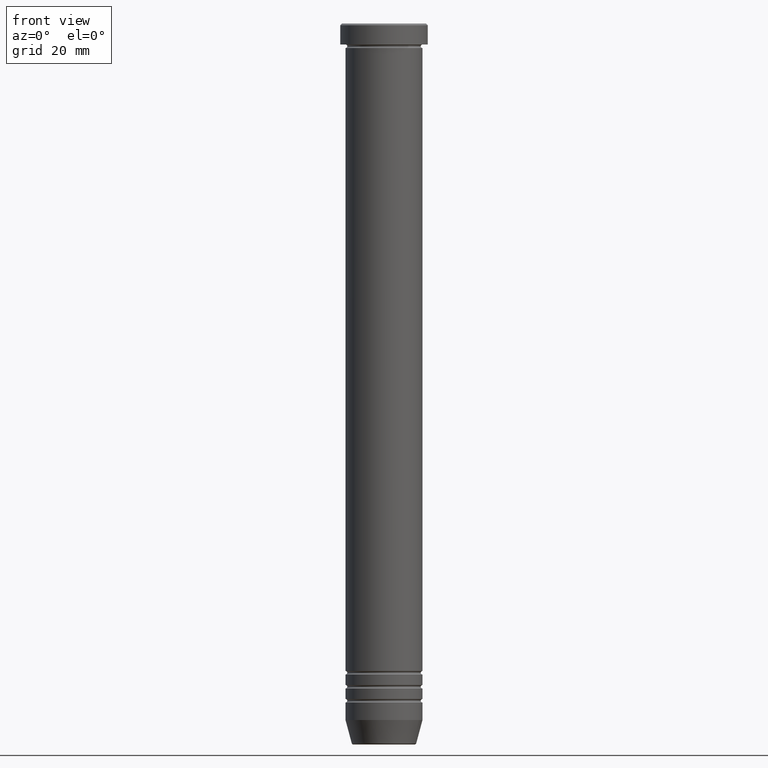
[diagram: clean part render]
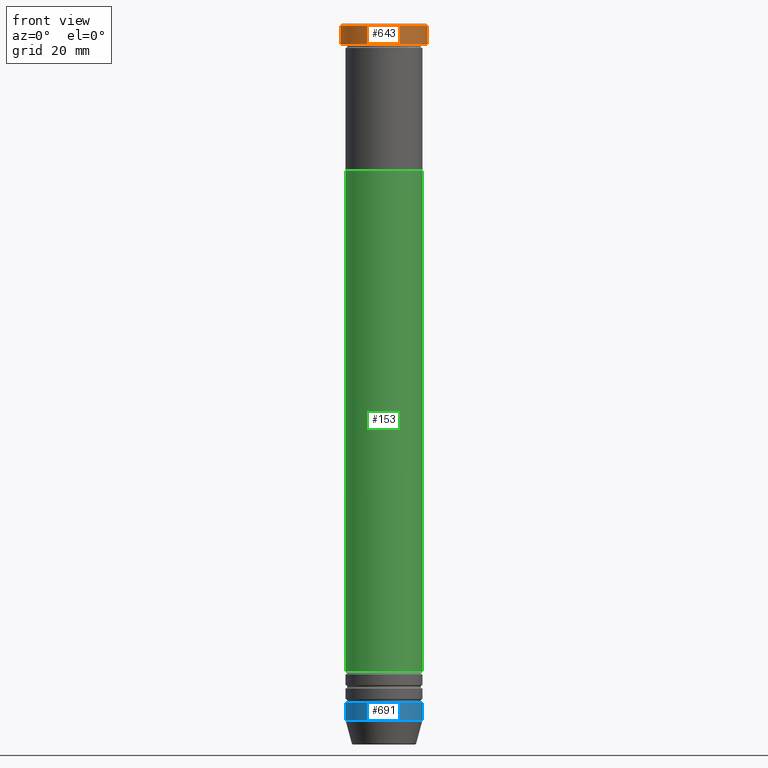
[diagram: same view with three faces highlighted in distinct colors, each labeled with its STEP entity id]
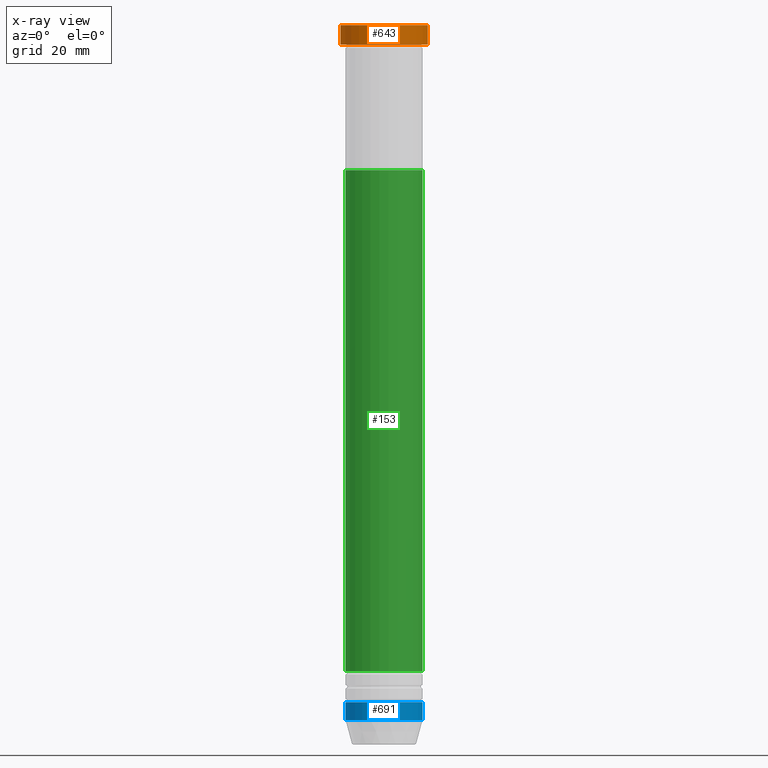
[diagram: x-ray of the same camera — body ghosted, the three highlighted faces saturated]
A machine part, front view with three faces highlighted in distinct colors.
The next image is the same camera in x-ray (body ghosted, the three faces saturated) — at least one of them is partly hidden behind the body in this view.
Their STEP definitions:

[orange] entity #643 — the highlighted cylindrical surface (partial cylindrical patch) has radius 12.5 mm, axis along (-0, -0, 1).
#18 = CARTESIAN_POINT ( 'NONE',  ( 0.000000000000000000, 0.000000000000000000, -0.5000000000000056621 ) ) ;
#50 = CARTESIAN_POINT ( 'NONE',  ( 12.50000000000000000, 0.000000000000000000, -0.5000000000000056621 ) ) ;
#63 = VERTEX_POINT ( 'NONE', #84 ) ;
#83 = CARTESIAN_POINT ( 'NONE',  ( 12.50000000000000000, 0.000000000000000000, 0.000000000000000000 ) ) ;
#84 = CARTESIAN_POINT ( 'NONE',  ( 12.50000000000000000, 0.000000000000000000, -6.000000000000000000 ) ) ;
#91 = DIRECTION ( 'NONE',  ( -0.000000000000000000, -0.000000000000000000, 1.000000000000000000 ) ) ;
#92 = CIRCLE ( 'NONE', #222, 12.50000000000000000 ) ;
#115 = ORIENTED_EDGE ( 'NONE', *, *, #1132, .T. ) ;
#133 = CARTESIAN_POINT ( 'NONE',  ( -12.50000000000000000, 1.530808498934191521E-15, -6.000000000000000000 ) ) ;
#200 = CYLINDRICAL_SURFACE ( 'NONE', #613, 12.50000000000000000 ) ;
#201 = VERTEX_POINT ( 'NONE', #50 ) ;
#222 = AXIS2_PLACEMENT_3D ( 'NONE', #18, #1054, #594 ) ;
#270 = DIRECTION ( 'NONE',  ( -0.000000000000000000, -0.000000000000000000, 1.000000000000000000 ) ) ;
#278 = CARTESIAN_POINT ( 'NONE',  ( 0.000000000000000000, 0.000000000000000000, -6.000000000000000000 ) ) ;
#289 = DIRECTION ( 'NONE',  ( -0.000000000000000000, -0.000000000000000000, 1.000000000000000000 ) ) ;
#293 = FACE_OUTER_BOUND ( 'NONE', #974, .T. ) ;
#360 = VERTEX_POINT ( 'NONE', #133 ) ;
#386 = EDGE_CURVE ( 'NONE', #360, #858, #1050, .T. ) ;
#399 = CIRCLE ( 'NONE', #1063, 12.50000000000000000 ) ;
#413 = ORIENTED_EDGE ( 'NONE', *, *, #651, .T. ) ;
#430 = LINE ( 'NONE', #83, #586 ) ;
#444 = EDGE_CURVE ( 'NONE', #201, #858, #92, .T. ) ;
#476 = ORIENTED_EDGE ( 'NONE', *, *, #444, .T. ) ;
#480 = CARTESIAN_POINT ( 'NONE',  ( -12.50000000000000000, 1.530808498934191521E-15, -0.5000000000000056621 ) ) ;
#557 = ORIENTED_EDGE ( 'NONE', *, *, #386, .F. ) ;
#586 = VECTOR ( 'NONE', #91, 1000.000000000000000 ) ;
#594 = DIRECTION ( 'NONE',  ( 1.000000000000000000, 0.000000000000000000, 0.000000000000000000 ) ) ;
#613 = AXIS2_PLACEMENT_3D ( 'NONE', #635, #289, #624 ) ;
#624 = DIRECTION ( 'NONE',  ( 1.000000000000000000, 0.000000000000000000, 0.000000000000000000 ) ) ;
#635 = CARTESIAN_POINT ( 'NONE',  ( 0.000000000000000000, 0.000000000000000000, 0.000000000000000000 ) ) ;
#643 = ADVANCED_FACE ( 'NONE', ( #293 ), #200, .T. ) ;
#651 = EDGE_CURVE ( 'NONE', #360, #63, #399, .T. ) ;
#683 = CARTESIAN_POINT ( 'NONE',  ( -12.50000000000000000, 1.530808498934191521E-15, 0.000000000000000000 ) ) ;
#773 = VECTOR ( 'NONE', #270, 1000.000000000000000 ) ;
#858 = VERTEX_POINT ( 'NONE', #480 ) ;
#898 = DIRECTION ( 'NONE',  ( -0.000000000000000000, -0.000000000000000000, 1.000000000000000000 ) ) ;
#974 = EDGE_LOOP ( 'NONE', ( #557, #413, #115, #476 ) ) ;
#988 = DIRECTION ( 'NONE',  ( 1.000000000000000000, 0.000000000000000000, 0.000000000000000000 ) ) ;
#1050 = LINE ( 'NONE', #683, #773 ) ;
#1054 = DIRECTION ( 'NONE',  ( 0.000000000000000000, 0.000000000000000000, -1.000000000000000000 ) ) ;
#1063 = AXIS2_PLACEMENT_3D ( 'NONE', #278, #898, #988 ) ;
#1132 = EDGE_CURVE ( 'NONE', #63, #201, #430, .T. ) ;

[blue] entity #691 — the highlighted cylindrical surface (partial cylindrical patch) has radius 11 mm, axis along (-0, -0, 1).
#82 = DIRECTION ( 'NONE',  ( -0.000000000000000000, -0.000000000000000000, 1.000000000000000000 ) ) ;
#96 = CARTESIAN_POINT ( 'NONE',  ( 11.00000000000000178, 0.000000000000000000, 0.000000000000000000 ) ) ;
#98 = CARTESIAN_POINT ( 'NONE',  ( -11.00000000000000178, 1.347111479062088602E-15, -199.0000000000000000 ) ) ;
#152 = FACE_OUTER_BOUND ( 'NONE', #1045, .T. ) ;
#184 = VERTEX_POINT ( 'NONE', #1035 ) ;
#210 = DIRECTION ( 'NONE',  ( -0.000000000000000000, -0.000000000000000000, 1.000000000000000000 ) ) ;
#220 = ORIENTED_EDGE ( 'NONE', *, *, #459, .T. ) ;
#254 = CARTESIAN_POINT ( 'NONE',  ( -11.00000000000000178, 1.347111479062088602E-15, -194.0000000000000000 ) ) ;
#261 = VECTOR ( 'NONE', #82, 1000.000000000000000 ) ;
#390 = ORIENTED_EDGE ( 'NONE', *, *, #1120, .F. ) ;
#414 = DIRECTION ( 'NONE',  ( 1.000000000000000000, 0.000000000000000000, 0.000000000000000000 ) ) ;
#431 = DIRECTION ( 'NONE',  ( -0.000000000000000000, -0.000000000000000000, 1.000000000000000000 ) ) ;
#432 = VERTEX_POINT ( 'NONE', #254 ) ;
#459 = EDGE_CURVE ( 'NONE', #664, #184, #962, .T. ) ;
#492 = CARTESIAN_POINT ( 'NONE',  ( 0.000000000000000000, 0.000000000000000000, 0.000000000000000000 ) ) ;
#506 = CYLINDRICAL_SURFACE ( 'NONE', #543, 11.00000000000000178 ) ;
#512 = CIRCLE ( 'NONE', #732, 11.00000000000000178 ) ;
#543 = AXIS2_PLACEMENT_3D ( 'NONE', #492, #665, #1033 ) ;
#559 = DIRECTION ( 'NONE',  ( 1.000000000000000000, 0.000000000000000000, 0.000000000000000000 ) ) ;
#564 = CARTESIAN_POINT ( 'NONE',  ( 11.00000000000000178, 0.000000000000000000, -199.0000000000000000 ) ) ;
#601 = VECTOR ( 'NONE', #1030, 1000.000000000000000 ) ;
#652 = CARTESIAN_POINT ( 'NONE',  ( 0.000000000000000000, 0.000000000000000000, -199.0000000000000000 ) ) ;
#662 = CARTESIAN_POINT ( 'NONE',  ( -11.00000000000000178, 1.347111479062088602E-15, 0.000000000000000000 ) ) ;
#664 = VERTEX_POINT ( 'NONE', #564 ) ;
#665 = DIRECTION ( 'NONE',  ( -0.000000000000000000, -0.000000000000000000, 1.000000000000000000 ) ) ;
#691 = ADVANCED_FACE ( 'NONE', ( #152 ), #506, .T. ) ;
#732 = AXIS2_PLACEMENT_3D ( 'NONE', #874, #431, #414 ) ;
#795 = ORIENTED_EDGE ( 'NONE', *, *, #1055, .T. ) ;
#828 = AXIS2_PLACEMENT_3D ( 'NONE', #652, #210, #559 ) ;
#836 = EDGE_CURVE ( 'NONE', #1116, #432, #839, .T. ) ;
#839 = LINE ( 'NONE', #662, #601 ) ;
#874 = CARTESIAN_POINT ( 'NONE',  ( 0.000000000000000000, 0.000000000000000000, -194.0000000000000000 ) ) ;
#962 = LINE ( 'NONE', #96, #261 ) ;
#1027 = CIRCLE ( 'NONE', #828, 11.00000000000000178 ) ;
#1030 = DIRECTION ( 'NONE',  ( -0.000000000000000000, -0.000000000000000000, 1.000000000000000000 ) ) ;
#1033 = DIRECTION ( 'NONE',  ( 1.000000000000000000, 0.000000000000000000, 0.000000000000000000 ) ) ;
#1035 = CARTESIAN_POINT ( 'NONE',  ( 11.00000000000000178, 0.000000000000000000, -194.0000000000000000 ) ) ;
#1045 = EDGE_LOOP ( 'NONE', ( #1069, #795, #220, #390 ) ) ;
#1055 = EDGE_CURVE ( 'NONE', #1116, #664, #1027, .T. ) ;
#1069 = ORIENTED_EDGE ( 'NONE', *, *, #836, .F. ) ;
#1116 = VERTEX_POINT ( 'NONE', #98 ) ;
#1120 = EDGE_CURVE ( 'NONE', #432, #184, #512, .T. ) ;

[green] entity #153 — the highlighted cylindrical surface (partial cylindrical patch) has radius 11 mm, axis along (-0, -0, 1).
#37 = DIRECTION ( 'NONE',  ( 1.000000000000000000, 0.000000000000000000, 0.000000000000000000 ) ) ;
#49 = LINE ( 'NONE', #219, #1097 ) ;
#104 = ORIENTED_EDGE ( 'NONE', *, *, #537, .F. ) ;
#124 = DIRECTION ( 'NONE',  ( -0.000000000000000000, -0.000000000000000000, 1.000000000000000000 ) ) ;
#139 = DIRECTION ( 'NONE',  ( 1.000000000000000000, 0.000000000000000000, 0.000000000000000000 ) ) ;
#153 = ADVANCED_FACE ( 'NONE', ( #527 ), #287, .T. ) ;
#160 = CIRCLE ( 'NONE', #291, 11.00000000000000000 ) ;
#167 = VERTEX_POINT ( 'NONE', #290 ) ;
#175 = AXIS2_PLACEMENT_3D ( 'NONE', #203, #124, #37 ) ;
#203 = CARTESIAN_POINT ( 'NONE',  ( 0.000000000000000000, 0.000000000000000000, 0.000000000000000000 ) ) ;
#212 = CARTESIAN_POINT ( 'NONE',  ( 0.000000000000000000, 0.000000000000000000, -41.99999999999999289 ) ) ;
#219 = CARTESIAN_POINT ( 'NONE',  ( -10.99999999999999645, 1.347111479062088010E-15, 0.000000000000000000 ) ) ;
#267 = ORIENTED_EDGE ( 'NONE', *, *, #896, .T. ) ;
#282 = DIRECTION ( 'NONE',  ( 1.000000000000000000, 0.000000000000000000, 0.000000000000000000 ) ) ;
#286 = DIRECTION ( 'NONE',  ( -0.000000000000000000, -0.000000000000000000, 1.000000000000000000 ) ) ;
#287 = CYLINDRICAL_SURFACE ( 'NONE', #175, 10.99999999999999645 ) ;
#290 = CARTESIAN_POINT ( 'NONE',  ( 10.99999999999999467, 0.000000000000000000, -185.0000000000000284 ) ) ;
#291 = AXIS2_PLACEMENT_3D ( 'NONE', #212, #362, #139 ) ;
#305 = CARTESIAN_POINT ( 'NONE',  ( -10.99999999999999822, 1.347111479062088405E-15, -41.99999999999999289 ) ) ;
#311 = LINE ( 'NONE', #1014, #633 ) ;
#362 = DIRECTION ( 'NONE',  ( -0.000000000000000000, -0.000000000000000000, 1.000000000000000000 ) ) ;
#365 = CARTESIAN_POINT ( 'NONE',  ( 0.000000000000000000, 0.000000000000000000, -185.0000000000000284 ) ) ;
#477 = AXIS2_PLACEMENT_3D ( 'NONE', #365, #286, #282 ) ;
#527 = FACE_OUTER_BOUND ( 'NONE', #993, .T. ) ;
#537 = EDGE_CURVE ( 'NONE', #814, #983, #160, .T. ) ;
#566 = CIRCLE ( 'NONE', #477, 10.99999999999999467 ) ;
#633 = VECTOR ( 'NONE', #1138, 1000.000000000000000 ) ;
#698 = ORIENTED_EDGE ( 'NONE', *, *, #1032, .F. ) ;
#728 = CARTESIAN_POINT ( 'NONE',  ( 11.00000000000000000, 0.000000000000000000, -41.99999999999999289 ) ) ;
#814 = VERTEX_POINT ( 'NONE', #305 ) ;
#815 = EDGE_CURVE ( 'NONE', #167, #983, #311, .T. ) ;
#889 = VERTEX_POINT ( 'NONE', #986 ) ;
#896 = EDGE_CURVE ( 'NONE', #889, #167, #566, .T. ) ;
#959 = ORIENTED_EDGE ( 'NONE', *, *, #815, .T. ) ;
#983 = VERTEX_POINT ( 'NONE', #728 ) ;
#986 = CARTESIAN_POINT ( 'NONE',  ( -10.99999999999999467, 1.347111479062087813E-15, -185.0000000000000284 ) ) ;
#993 = EDGE_LOOP ( 'NONE', ( #698, #267, #959, #104 ) ) ;
#1014 = CARTESIAN_POINT ( 'NONE',  ( 10.99999999999999645, 0.000000000000000000, 0.000000000000000000 ) ) ;
#1029 = DIRECTION ( 'NONE',  ( -0.000000000000000000, -0.000000000000000000, 1.000000000000000000 ) ) ;
#1032 = EDGE_CURVE ( 'NONE', #889, #814, #49, .T. ) ;
#1097 = VECTOR ( 'NONE', #1029, 1000.000000000000000 ) ;
#1138 = DIRECTION ( 'NONE',  ( -0.000000000000000000, -0.000000000000000000, 1.000000000000000000 ) ) ;